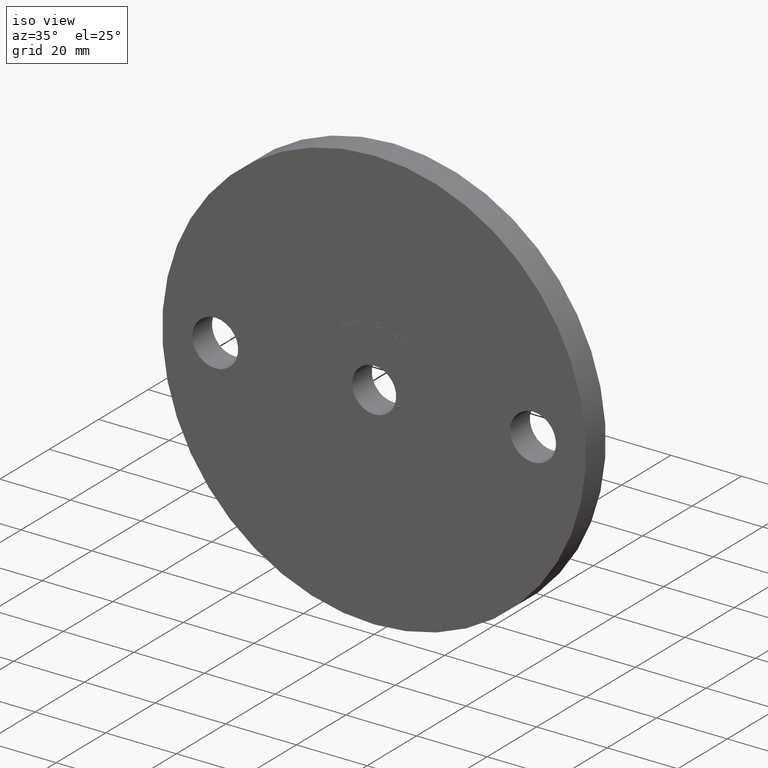
[diagram: clean part render]
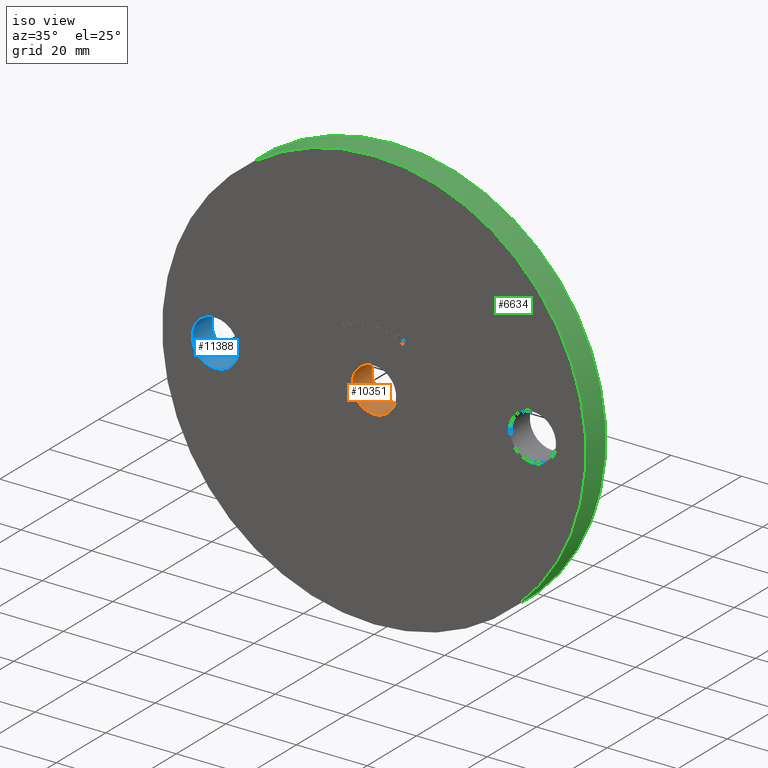
[diagram: same view with three faces highlighted in distinct colors, each labeled with its STEP entity id]
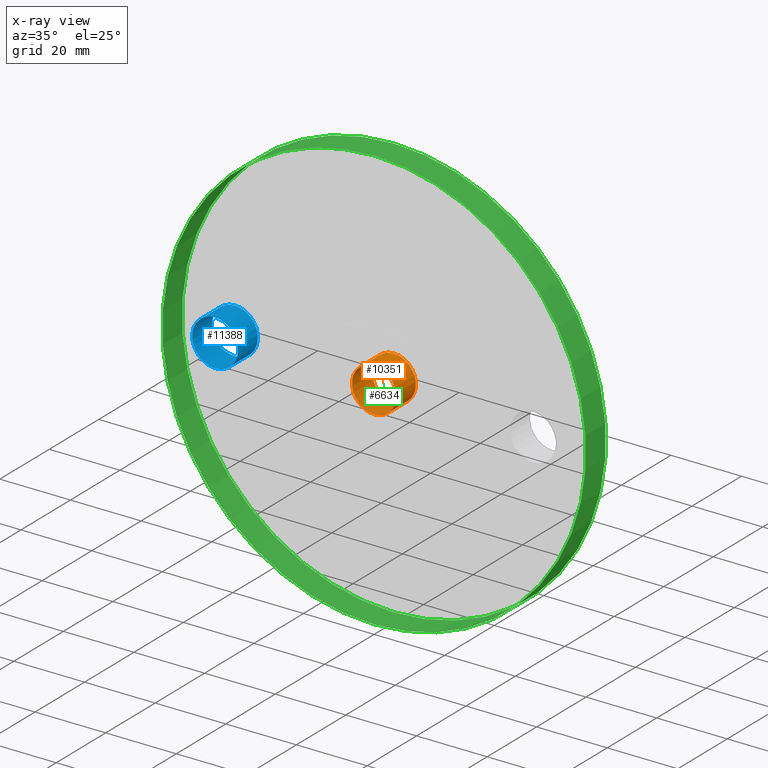
[diagram: x-ray of the same camera — body ghosted, the three highlighted faces saturated]
A machine part, iso view with three faces highlighted in distinct colors.
The next image is the same camera in x-ray (body ghosted, the three faces saturated) — at least one of them is partly hidden behind the body in this view.
Their STEP definitions:

[orange] entity #10351 — the highlighted cylindrical surface (bore or boss wall) has radius 6.25 mm, axis along (-0, 1, -0).
#457 = CARTESIAN_POINT ( 'NONE',  ( 0.000000000000000000, 0.000000000000000000, 0.000000000000000000 ) ) ;
#639 = EDGE_CURVE ( 'NONE', #11442, #11442, #893, .T. ) ;
#893 = CIRCLE ( 'NONE', #5500, 6.250000000000000000 ) ;
#1382 = CARTESIAN_POINT ( 'NONE',  ( 0.000000000000000000, 0.000000000000000000, 0.000000000000000000 ) ) ;
#1473 = DIRECTION ( 'NONE',  ( 0.000000000000000000, 0.000000000000000000, 1.000000000000000000 ) ) ;
#2296 = DIRECTION ( 'NONE',  ( -0.000000000000000000, 1.000000000000000000, -0.000000000000000000 ) ) ;
#3017 = EDGE_LOOP ( 'NONE', ( #4124 ) ) ;
#3835 = AXIS2_PLACEMENT_3D ( 'NONE', #12469, #5517, #9556 ) ;
#4056 = EDGE_CURVE ( 'NONE', #4219, #4219, #4887, .T. ) ;
#4075 = CARTESIAN_POINT ( 'NONE',  ( 0.000000000000000000, 0.000000000000000000, 6.250000000000000000 ) ) ;
#4124 = ORIENTED_EDGE ( 'NONE', *, *, #4056, .T. ) ;
#4219 = VERTEX_POINT ( 'NONE', #10934 ) ;
#4887 = CIRCLE ( 'NONE', #3835, 6.250000000000000000 ) ;
#5020 = FACE_OUTER_BOUND ( 'NONE', #5862, .T. ) ;
#5191 = CYLINDRICAL_SURFACE ( 'NONE', #7812, 6.250000000000000000 ) ;
#5419 = ORIENTED_EDGE ( 'NONE', *, *, #639, .F. ) ;
#5500 = AXIS2_PLACEMENT_3D ( 'NONE', #457, #8236, #11188 ) ;
#5517 = DIRECTION ( 'NONE',  ( 0.000000000000000000, 1.000000000000000000, 0.000000000000000000 ) ) ;
#5862 = EDGE_LOOP ( 'NONE', ( #5419 ) ) ;
#7812 = AXIS2_PLACEMENT_3D ( 'NONE', #1382, #2296, #1473 ) ;
#8236 = DIRECTION ( 'NONE',  ( 0.000000000000000000, 1.000000000000000000, 0.000000000000000000 ) ) ;
#9556 = DIRECTION ( 'NONE',  ( 0.000000000000000000, 0.000000000000000000, 1.000000000000000000 ) ) ;
#9910 = FACE_OUTER_BOUND ( 'NONE', #3017, .T. ) ;
#10351 = ADVANCED_FACE ( 'NONE', ( #5020, #9910 ), #5191, .F. ) ;
#10934 = CARTESIAN_POINT ( 'NONE',  ( 0.000000000000000000, 8.000000000000000000, 6.250000000000000000 ) ) ;
#11188 = DIRECTION ( 'NONE',  ( 0.000000000000000000, 0.000000000000000000, 1.000000000000000000 ) ) ;
#11442 = VERTEX_POINT ( 'NONE', #4075 ) ;
#12469 = CARTESIAN_POINT ( 'NONE',  ( 0.000000000000000000, 8.000000000000000000, 0.000000000000000000 ) ) ;

[blue] entity #11388 — the highlighted cylindrical surface (bore or boss wall) has radius 6.5 mm, axis along (-0, 1, -0).
#828 = FACE_OUTER_BOUND ( 'NONE', #2530, .T. ) ;
#1452 = CYLINDRICAL_SURFACE ( 'NONE', #8882, 6.500000000000000888 ) ;
#1501 = CIRCLE ( 'NONE', #12046, 6.500000000000000888 ) ;
#2394 = FACE_OUTER_BOUND ( 'NONE', #11264, .T. ) ;
#2405 = EDGE_CURVE ( 'NONE', #10805, #10805, #1501, .T. ) ;
#2530 = EDGE_LOOP ( 'NONE', ( #7314 ) ) ;
#3603 = VERTEX_POINT ( 'NONE', #5074 ) ;
#4232 = DIRECTION ( 'NONE',  ( 0.000000000000000000, 1.000000000000000000, 0.000000000000000000 ) ) ;
#5074 = CARTESIAN_POINT ( 'NONE',  ( -45.00000000000000000, 8.000000000000000000, 6.500000000000000888 ) ) ;
#5136 = CARTESIAN_POINT ( 'NONE',  ( -45.00000000000000000, 0.000000000000000000, 0.000000000000000000 ) ) ;
#5606 = AXIS2_PLACEMENT_3D ( 'NONE', #8372, #12211, #12329 ) ;
#5644 = CIRCLE ( 'NONE', #5606, 6.500000000000000888 ) ;
#7314 = ORIENTED_EDGE ( 'NONE', *, *, #10573, .T. ) ;
#8268 = ORIENTED_EDGE ( 'NONE', *, *, #2405, .F. ) ;
#8372 = CARTESIAN_POINT ( 'NONE',  ( -45.00000000000000000, 8.000000000000000000, 0.000000000000000000 ) ) ;
#8882 = AXIS2_PLACEMENT_3D ( 'NONE', #11290, #11246, #12179 ) ;
#9935 = CARTESIAN_POINT ( 'NONE',  ( -45.00000000000000000, 0.000000000000000000, 6.500000000000000888 ) ) ;
#10573 = EDGE_CURVE ( 'NONE', #3603, #3603, #5644, .T. ) ;
#10805 = VERTEX_POINT ( 'NONE', #9935 ) ;
#11092 = DIRECTION ( 'NONE',  ( 0.000000000000000000, 0.000000000000000000, 1.000000000000000000 ) ) ;
#11246 = DIRECTION ( 'NONE',  ( -0.000000000000000000, 1.000000000000000000, -0.000000000000000000 ) ) ;
#11264 = EDGE_LOOP ( 'NONE', ( #8268 ) ) ;
#11290 = CARTESIAN_POINT ( 'NONE',  ( -45.00000000000000000, 0.000000000000000000, 0.000000000000000000 ) ) ;
#11388 = ADVANCED_FACE ( 'NONE', ( #2394, #828 ), #1452, .F. ) ;
#12046 = AXIS2_PLACEMENT_3D ( 'NONE', #5136, #4232, #11092 ) ;
#12179 = DIRECTION ( 'NONE',  ( 0.000000000000000000, 0.000000000000000000, 1.000000000000000000 ) ) ;
#12211 = DIRECTION ( 'NONE',  ( 0.000000000000000000, 1.000000000000000000, 0.000000000000000000 ) ) ;
#12329 = DIRECTION ( 'NONE',  ( 0.000000000000000000, 0.000000000000000000, 1.000000000000000000 ) ) ;

[green] entity #6634 — the highlighted cylindrical surface (bore or boss wall) has radius 60 mm, axis along (-0, -1, -0).
#316 = EDGE_CURVE ( 'NONE', #645, #645, #3068, .T. ) ;
#645 = VERTEX_POINT ( 'NONE', #10896 ) ;
#1465 = FACE_OUTER_BOUND ( 'NONE', #6578, .T. ) ;
#2227 = EDGE_CURVE ( 'NONE', #12489, #12489, #5387, .T. ) ;
#2238 = ORIENTED_EDGE ( 'NONE', *, *, #2227, .F. ) ;
#2280 = CARTESIAN_POINT ( 'NONE',  ( 0.000000000000000000, 8.000000000000000000, 0.000000000000000000 ) ) ;
#2513 = DIRECTION ( 'NONE',  ( 0.000000000000000000, 0.000000000000000000, 1.000000000000000000 ) ) ;
#3068 = CIRCLE ( 'NONE', #8684, 60.00000000000000000 ) ;
#3380 = CARTESIAN_POINT ( 'NONE',  ( 0.000000000000000000, 8.000000000000000000, 0.000000000000000000 ) ) ;
#3729 = EDGE_LOOP ( 'NONE', ( #2238 ) ) ;
#4226 = DIRECTION ( 'NONE',  ( 0.000000000000000000, 0.000000000000000000, -1.000000000000000000 ) ) ;
#5387 = CIRCLE ( 'NONE', #11396, 60.00000000000000000 ) ;
#5512 = ORIENTED_EDGE ( 'NONE', *, *, #316, .T. ) ;
#6421 = AXIS2_PLACEMENT_3D ( 'NONE', #2280, #12073, #4226 ) ;
#6578 = EDGE_LOOP ( 'NONE', ( #5512 ) ) ;
#6634 = ADVANCED_FACE ( 'NONE', ( #8710, #1465 ), #8420, .T. ) ;
#7265 = DIRECTION ( 'NONE',  ( 0.000000000000000000, 1.000000000000000000, 0.000000000000000000 ) ) ;
#8420 = CYLINDRICAL_SURFACE ( 'NONE', #6421, 60.00000000000000000 ) ;
#8432 = DIRECTION ( 'NONE',  ( 0.000000000000000000, 1.000000000000000000, 0.000000000000000000 ) ) ;
#8474 = CARTESIAN_POINT ( 'NONE',  ( 0.000000000000000000, 0.000000000000000000, 0.000000000000000000 ) ) ;
#8684 = AXIS2_PLACEMENT_3D ( 'NONE', #8474, #8432, #2513 ) ;
#8710 = FACE_OUTER_BOUND ( 'NONE', #3729, .T. ) ;
#10804 = CARTESIAN_POINT ( 'NONE',  ( 0.000000000000000000, 8.000000000000000000, 60.00000000000000000 ) ) ;
#10896 = CARTESIAN_POINT ( 'NONE',  ( 0.000000000000000000, 0.000000000000000000, 60.00000000000000000 ) ) ;
#11200 = DIRECTION ( 'NONE',  ( 0.000000000000000000, 0.000000000000000000, 1.000000000000000000 ) ) ;
#11396 = AXIS2_PLACEMENT_3D ( 'NONE', #3380, #7265, #11200 ) ;
#12073 = DIRECTION ( 'NONE',  ( -0.000000000000000000, -1.000000000000000000, -0.000000000000000000 ) ) ;
#12489 = VERTEX_POINT ( 'NONE', #10804 ) ;